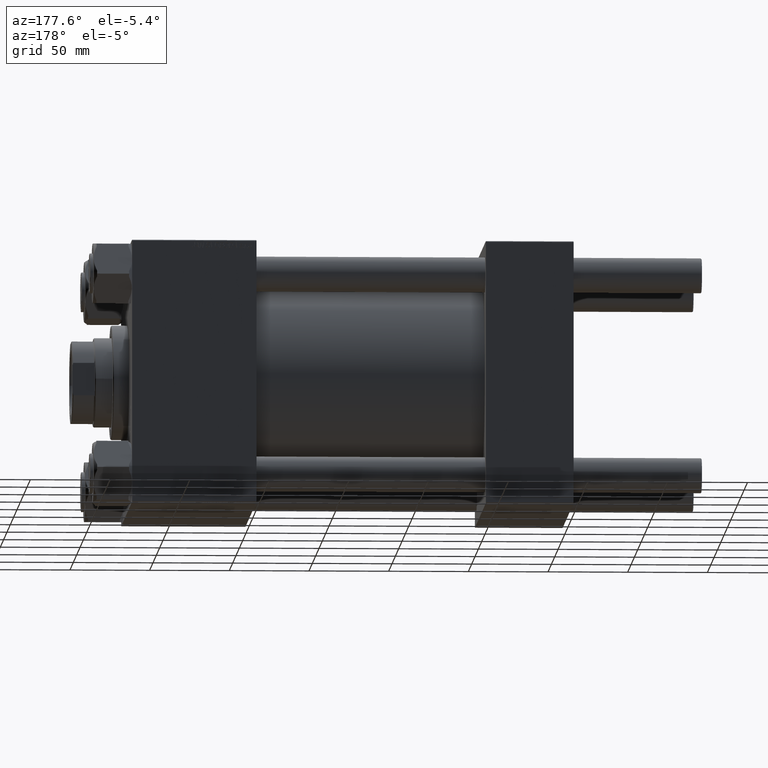
[diagram: clean part render]
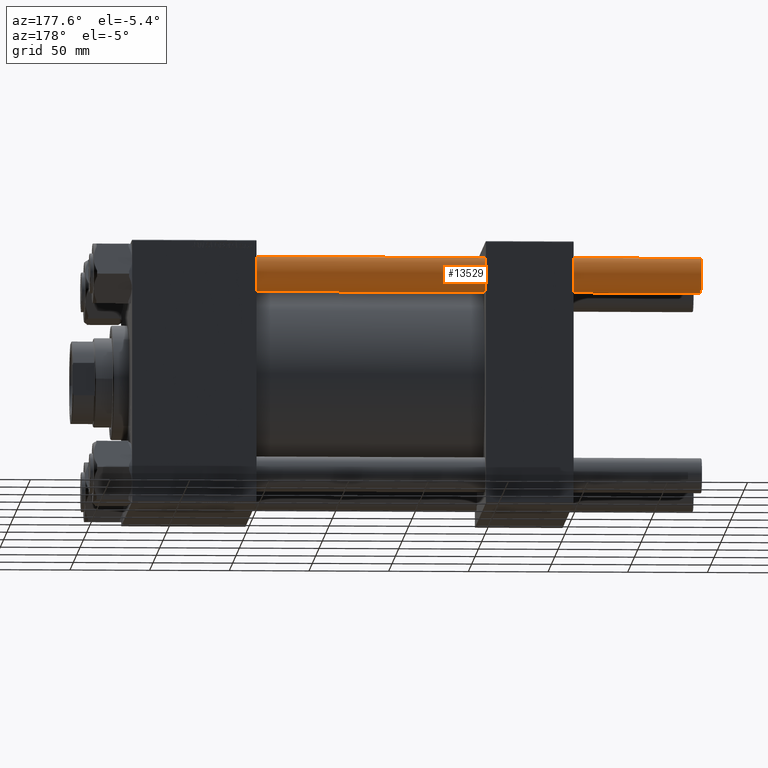
[diagram: same view with one face highlighted and labeled with its STEP entity id]
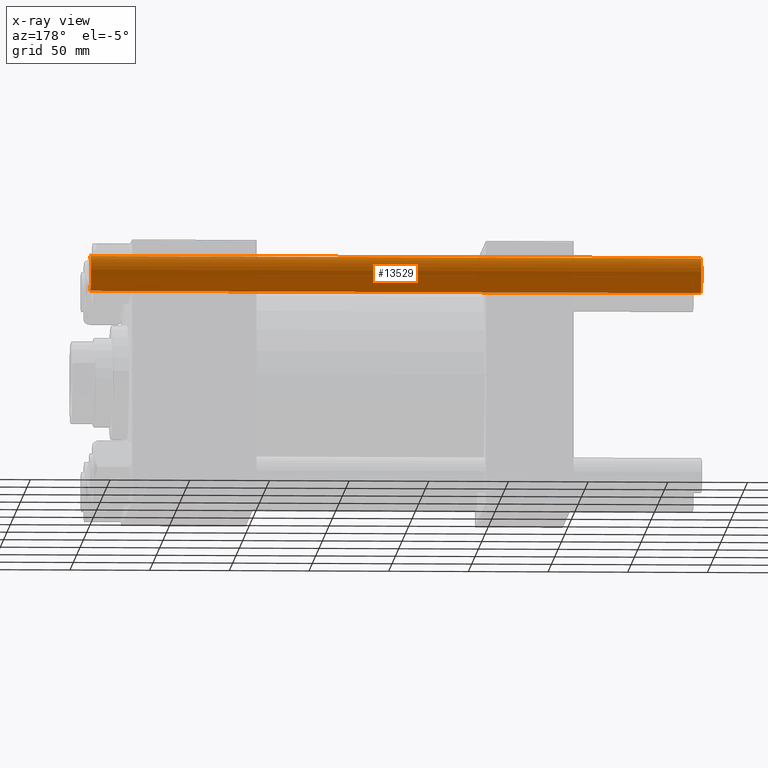
[diagram: x-ray of the same camera — body ghosted, the highlighted face saturated]
A machine part, auxiliary view. The second image highlights one B-rep face of the part: STEP entity #13529.
The next image is the same camera in x-ray: the body ghosted, the highlighted face saturated — about 0% of this face is hidden behind the body in this view.
In plain terms, the highlighted cylindrical surface (edge-blend (fillet) strip) has radius 11 mm, axis along (-1, -0, -0).
Its self-contained STEP definition (entity closure, byte-faithful):
#679 = LINE ( 'NONE', #17011, #49737 ) ;
#4870 = ORIENTED_EDGE ( 'NONE', *, *, #22256, .T. ) ;
#5835 = AXIS2_PLACEMENT_3D ( 'NONE', #17107, #28581, #32676 ) ;
#6562 = CARTESIAN_POINT ( 'NONE',  ( -11.00000000000000000, 0.000000000000000000, 383.5000000000000568 ) ) ;
#7072 = ORIENTED_EDGE ( 'NONE', *, *, #42254, .T. ) ;
#7849 = ORIENTED_EDGE ( 'NONE', *, *, #15092, .T. ) ;
#10710 = CARTESIAN_POINT ( 'NONE',  ( 11.00000000000000000, 1.347111479062088405E-15, 0.4999999999999449329 ) ) ;
#13529 = ADVANCED_FACE ( 'NONE', ( #35504 ), #16362, .T. ) ;
#14726 = CARTESIAN_POINT ( 'NONE',  ( 0.000000000000000000, 0.000000000000000000, 0.4999999999999449329 ) ) ;
#15092 = EDGE_CURVE ( 'NONE', #28641, #18732, #49888, .T. ) ;
#16362 = CYLINDRICAL_SURFACE ( 'NONE', #5835, 11.00000000000000000 ) ;
#16533 = AXIS2_PLACEMENT_3D ( 'NONE', #14726, #30776, #49654 ) ;
#17011 = CARTESIAN_POINT ( 'NONE',  ( -11.00000000000000000, 0.000000000000000000, 384.0000000000000000 ) ) ;
#17107 = CARTESIAN_POINT ( 'NONE',  ( 0.000000000000000000, 0.000000000000000000, 384.0000000000000000 ) ) ;
#18732 = VERTEX_POINT ( 'NONE', #19960 ) ;
#19705 = AXIS2_PLACEMENT_3D ( 'NONE', #34695, #22945, #49985 ) ;
#19960 = CARTESIAN_POINT ( 'NONE',  ( -11.00000000000000000, 0.000000000000000000, 0.4999999999999449329 ) ) ;
#20331 = DIRECTION ( 'NONE',  ( -0.000000000000000000, -0.000000000000000000, -1.000000000000000000 ) ) ;
#22256 = EDGE_CURVE ( 'NONE', #22913, #28641, #33020, .T. ) ;
#22913 = VERTEX_POINT ( 'NONE', #40295 ) ;
#22945 = DIRECTION ( 'NONE',  ( 0.000000000000000000, 0.000000000000000000, -1.000000000000000000 ) ) ;
#23008 = EDGE_LOOP ( 'NONE', ( #7072, #4870, #7849, #24254 ) ) ;
#24190 = VECTOR ( 'NONE', #48804, 1000.000000000000000 ) ;
#24254 = ORIENTED_EDGE ( 'NONE', *, *, #35211, .F. ) ;
#28581 = DIRECTION ( 'NONE',  ( -0.000000000000000000, -0.000000000000000000, -1.000000000000000000 ) ) ;
#28641 = VERTEX_POINT ( 'NONE', #10710 ) ;
#30776 = DIRECTION ( 'NONE',  ( -0.000000000000000000, -0.000000000000000000, 1.000000000000000000 ) ) ;
#32676 = DIRECTION ( 'NONE',  ( -1.000000000000000000, 0.000000000000000000, 0.000000000000000000 ) ) ;
#33020 = LINE ( 'NONE', #40661, #24190 ) ;
#34216 = VERTEX_POINT ( 'NONE', #6562 ) ;
#34695 = CARTESIAN_POINT ( 'NONE',  ( 0.000000000000000000, 0.000000000000000000, 383.5000000000000568 ) ) ;
#35211 = EDGE_CURVE ( 'NONE', #34216, #18732, #679, .T. ) ;
#35504 = FACE_OUTER_BOUND ( 'NONE', #23008, .T. ) ;
#36826 = CIRCLE ( 'NONE', #19705, 11.00000000000000000 ) ;
#40295 = CARTESIAN_POINT ( 'NONE',  ( 11.00000000000000000, 1.347111479062088405E-15, 383.5000000000000568 ) ) ;
#40661 = CARTESIAN_POINT ( 'NONE',  ( 11.00000000000000000, 1.347111479062088405E-15, 384.0000000000000000 ) ) ;
#42254 = EDGE_CURVE ( 'NONE', #34216, #22913, #36826, .T. ) ;
#48804 = DIRECTION ( 'NONE',  ( -0.000000000000000000, -0.000000000000000000, -1.000000000000000000 ) ) ;
#49654 = DIRECTION ( 'NONE',  ( 1.000000000000000000, 0.000000000000000000, 0.000000000000000000 ) ) ;
#49737 = VECTOR ( 'NONE', #20331, 1000.000000000000000 ) ;
#49888 = CIRCLE ( 'NONE', #16533, 11.00000000000000000 ) ;
#49985 = DIRECTION ( 'NONE',  ( 1.000000000000000000, 0.000000000000000000, 0.000000000000000000 ) ) ;